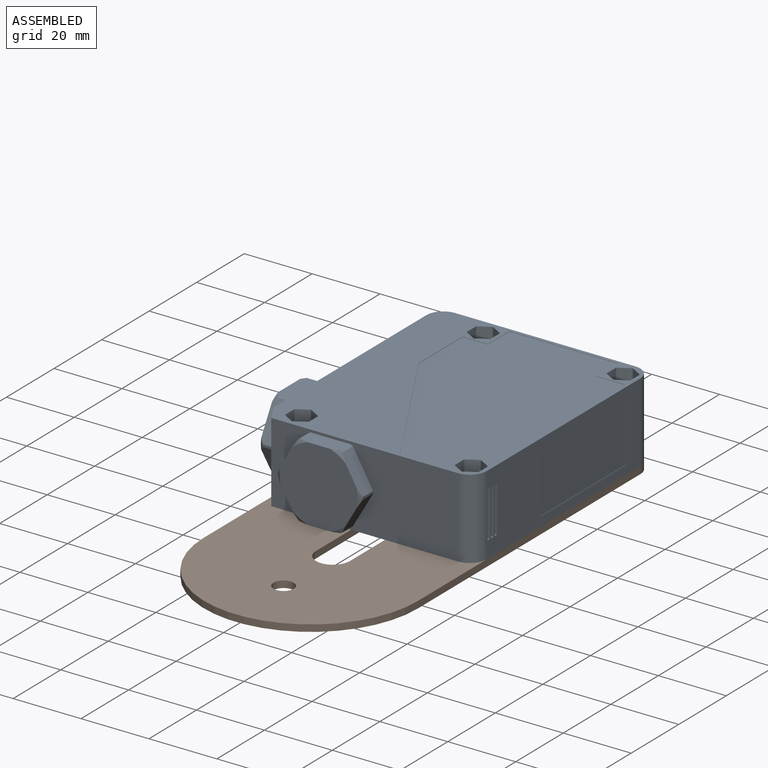
[diagram: assembled view]
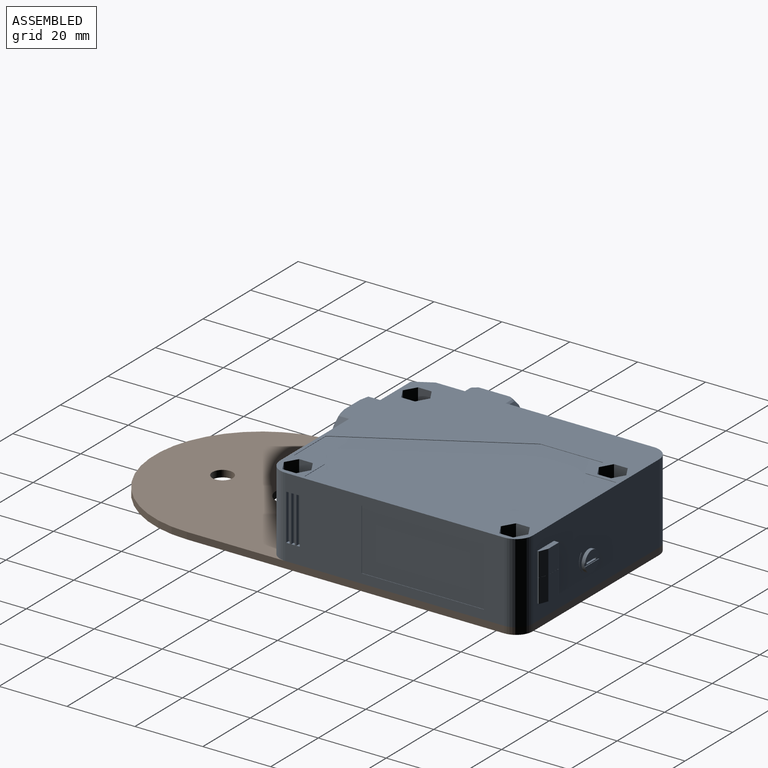
[diagram: assembled view, second angle]
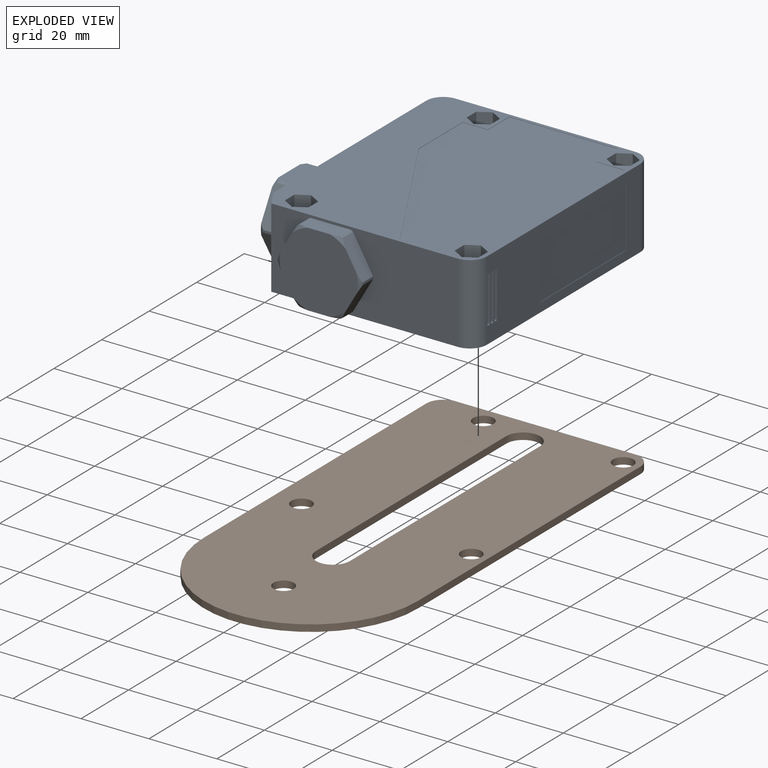
[diagram: exploded view]
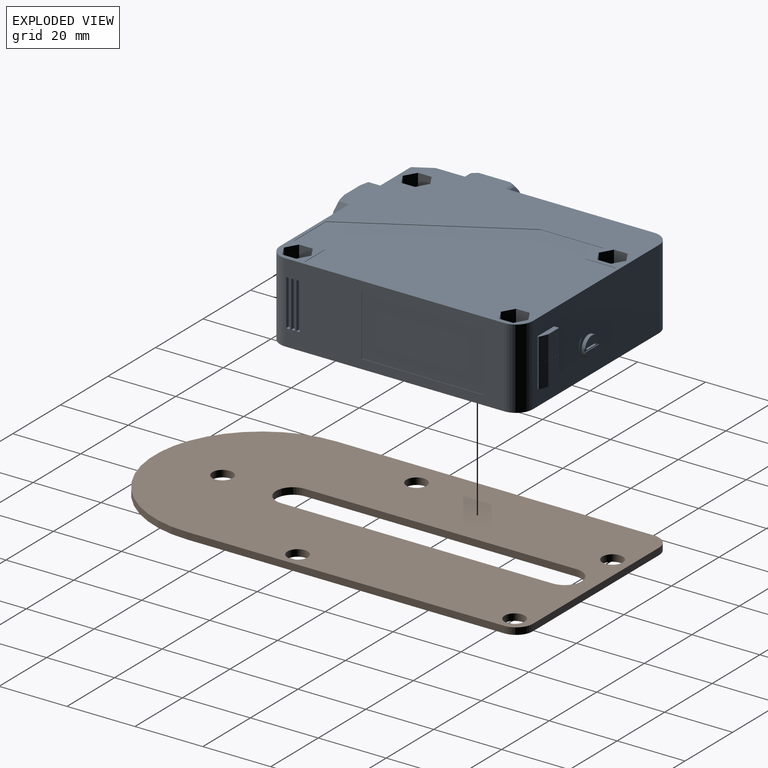
[diagram: exploded view, second angle]
ASSEMBLY  parts=2 mates=2
PART A: 185 faces, bbox 68.2x24.1x81.2 mm
  f0: plane 53x23.5mm, normal (0,0,1), area 1116.3mm2, adj f28,f33,f41,f42,f154,f155,f160,f161
  f1: plane 5.92x2.5mm, normal (0,0,1), area 11.2mm2, adj f171,f174
  f2: cylinder r=12.5mm len=4.42mm, axis (0,0,-1), area 3.2mm2, adj f8,f36,f151,f152
  f3: cylinder r=12.5mm len=4.42mm, axis (0,0,-1), area 3.2mm2, adj f9,f36,f147,f152
  f4: cylinder r=12.5mm len=4.42mm, axis (0,0,-1), area 3.2mm2, adj f10,f36,f150,f151
  f5: cylinder r=12.5mm len=4.42mm, axis (0,0,-1), area 3.2mm2, adj f11,f36,f148,f149
  f6: cylinder r=12.5mm len=4.42mm, axis (0,0,-1), area 3.2mm2, adj f12,f36,f149,f150
  f7: cylinder r=12.5mm len=4.42mm, axis (0,0,-1), area 3.2mm2, adj f13,f36,f147,f148
  f8: cone r=12.5mm half-angle=60deg, axis (0,0,1), area 3.5mm2, adj f2,f14,f151,f152
  f9: cone r=12.5mm half-angle=60deg, axis (0,0,1), area 3.5mm2, adj f3,f14,f147,f152
  f10: cone r=12.5mm half-angle=60deg, axis (0,0,1), area 3.5mm2, adj f4,f14,f150,f151
  f11: cone r=12.5mm half-angle=60deg, axis (0,0,1), area 3.5mm2, adj f5,f14,f148,f149
  f12: cone r=12.5mm half-angle=60deg, axis (0,0,1), area 3.5mm2, adj f6,f14,f149,f150
  f13: cone r=12.5mm half-angle=60deg, axis (0,0,1), area 3.5mm2, adj f7,f14,f147,f148
  f14: plane 23x22mm, normal (0,0,-1), area 402mm2, adj f8,f9,f10,f11,f12,f13,f147,f148
  f15: plane 23.85x22mm, normal (-1,0,0), area 412.4mm2, adj f16,f17,f18,f19,f20,f21,f141,f142
  f16: cone r=11.92mm half-angle=30deg, axis (1,0,0), area 2.2mm2, adj f15,f22,f144,f145
  f17: cone r=11.92mm half-angle=30deg, axis (1,0,0), area 2.2mm2, adj f15,f24,f141,f146
  f18: cone r=11.92mm half-angle=30deg, axis (1,0,0), area 2.2mm2, adj f15,f23,f145,f146
  f19: cone r=11.92mm half-angle=30deg, axis (1,0,0), area 2.2mm2, adj f15,f25,f141,f142
  f20: cone r=11.92mm half-angle=30deg, axis (1,0,0), area 2.2mm2, adj f15,f26,f142,f143
  f21: cone r=11.92mm half-angle=30deg, axis (1,0,0), area 2.2mm2, adj f15,f27,f143,f144
  f22: cylinder r=12.5mm len=4mm, axis (1,0,0), area 2.9mm2, adj f16,f34,f144,f145
  f23: cylinder r=12.5mm len=4mm, axis (1,0,0), area 2.9mm2, adj f18,f34,f145,f146
  f24: cylinder r=12.5mm len=4mm, axis (1,0,0), area 2.9mm2, adj f17,f34,f141,f146
  f25: cylinder r=12.5mm len=4mm, axis (1,0,0), area 2.9mm2, adj f19,f34,f141,f142
  f26: cylinder r=12.5mm len=4mm, axis (1,0,0), area 2.9mm2, adj f20,f34,f142,f143
  f27: cylinder r=12.5mm len=4mm, axis (1,0,0), area 2.9mm2, adj f21,f34,f143,f144
  f28: plane 74.5x63mm, normal (0,1,0), area 1839.4mm2, adj f0,f33,f34,f35,f36,f37,f40,f41
  f29: cylinder r=2.15mm len=16.1mm, axis (0,1,0), area 217.5mm2, adj f88,f116
  f30: cylinder r=2.15mm len=16.1mm, axis (0,1,0), area 217.5mm2, adj f81,f109
  f31: cylinder r=2.15mm len=16.1mm, axis (0,1,0), area 217.5mm2, adj f74,f102
  f32: cylinder r=2.15mm len=16.1mm, axis (0,1,0), area 217.5mm2, adj f67,f95
  f33: cylinder r=5mm len=23.5mm, axis (0,1,0), area 184.6mm2, adj f0,f28,f34,f42
  f34: plane 64.3x23.5mm, normal (-1,0,0), area 1092.4mm2, adj f22,f23,f24,f25,f26,f27,f28,f33
  f35: plane 23.5x5.2mm, normal (-0.87,0,-0.5), area 141mm2, adj f28,f34,f36,f42
  f36: plane 55x23.5mm, normal (0,0,-1), area 873.8mm2, adj f2,f3,f4,f5,f6,f7,f28,f35
  f37: cylinder r=5mm len=23.5mm, axis (0,1,0), area 184.6mm2, adj f28,f36,f40,f42
  f38: plane 13.6x1mm, normal (0,0,1), area 13.6mm2, adj f39,f40,f47,f49
  f39: plane 13.6x1mm, normal (1,0,0), area 13.6mm2, adj f38,f47,f48,f49
  f40: plane 64.5x23.5mm, normal (1,0,0), area 826.9mm2, adj f28,f37,f38,f41,f42,f43,f44,f45
  f41: cylinder r=5mm len=23.5mm, axis (0,1,0), area 184.6mm2, adj f0,f28,f40,f42
  f42: plane 74.5x63mm, normal (0,-1,0), area 1839.4mm2, adj f0,f33,f34,f35,f36,f37,f40,f41
  f43: plane 18x0.1mm, normal (0,0,1), area 1.8mm2, adj f40,f44,f45,f58
  f44: plane 36x0.1mm, normal (0,-1,0), area 3.6mm2, adj f40,f43,f46,f58
  f45: plane 36x0.1mm, normal (0,1,0), area 3.6mm2, adj f40,f43,f46,f58
  f46: plane 18x0.1mm, normal (0,0,-1), area 1.8mm2, adj f40,f44,f45,f58
  f47: plane 1x1mm, normal (0,1,0), area 1mm2, adj f38,f39,f40,f48
  f48: plane 13.6x1mm, normal (0,0,-1), area 13.6mm2, adj f39,f40,f47,f49
  f49: plane 1x1mm, normal (0,-1,0), area 1mm2, adj f38,f39,f40,f48
  f50: plane 13.6x1mm, normal (0,0,-1), area 13.6mm2, adj f40,f51,f56,f60
  f51: plane 1x1mm, normal (0,-1,0), area 1mm2, adj f40,f50,f52,f60
  f52: plane 13.6x1mm, normal (0,0,1), area 13.6mm2, adj f40,f51,f56,f60
  f53: plane 13.6x1mm, normal (0,0,-1), area 13.6mm2, adj f40,f54,f57,f59
  f54: plane 1x1mm, normal (0,-1,0), area 1mm2, adj f40,f53,f55,f59
  f55: plane 13.6x1mm, normal (0,0,1), area 13.6mm2, adj f40,f54,f57,f59
  f56: plane 1x1mm, normal (0,1,0), area 1mm2, adj f40,f50,f52,f60
  f57: plane 1x1mm, normal (0,1,0), area 1mm2, adj f40,f53,f55,f59
  f58: plane 36x18mm, normal (1,0,0), area 648mm2, adj f43,f44,f45,f46
  f59: plane 13.6x1mm, normal (1,0,0), area 13.6mm2, adj f53,f54,f55,f57
  f60: plane 13.6x1mm, normal (1,0,0), area 13.6mm2, adj f50,f51,f52,f56
  f61: plane 3.7x3.5mm, normal (0.5,0,-0.87), area 15mm2, adj f28,f62,f66,f67
  f62: plane 4.04x3.7mm, normal (1,0,0), area 15mm2, adj f28,f61,f63,f67
  f63: plane 3.7x3.5mm, normal (0.5,0,0.87), area 15mm2, adj f28,f62,f64,f67
  f64: plane 3.7x3.5mm, normal (-0.5,0,0.87), area 15mm2, adj f28,f63,f65,f67
  f65: plane 4.04x3.7mm, normal (-1,0,0), area 15mm2, adj f28,f64,f66,f67
  f66: plane 3.7x3.5mm, normal (-0.5,0,-0.87), area 15mm2, adj f28,f61,f65,f67
  f67: plane 8.08x7mm, normal (0,1,0), area 27.9mm2, adj f32,f61,f62,f63,f64,f65,f66
  f68: plane 3.7x3.5mm, normal (0.5,0,-0.87), area 15mm2, adj f28,f69,f73,f74
  f69: plane 4.04x3.7mm, normal (1,0,0), area 15mm2, adj f28,f68,f70,f74
  f70: plane 3.7x3.5mm, normal (0.5,0,0.87), area 15mm2, adj f28,f69,f71,f74
  f71: plane 3.7x3.5mm, normal (-0.5,0,0.87), area 15mm2, adj f28,f70,f72,f74
  f72: plane 4.04x3.7mm, normal (-1,0,0), area 15mm2, adj f28,f71,f73,f74
  f73: plane 3.7x3.5mm, normal (-0.5,0,-0.87), area 15mm2, adj f28,f68,f72,f74
  f74: plane 8.08x7mm, normal (0,1,0), area 27.9mm2, adj f31,f68,f69,f70,f71,f72,f73
  f75: plane 3.7x3.5mm, normal (0.5,0,-0.87), area 15mm2, adj f28,f76,f80,f81
  f76: plane 4.04x3.7mm, normal (1,0,0), area 15mm2, adj f28,f75,f77,f81
  f77: plane 3.7x3.5mm, normal (0.5,0,0.87), area 15mm2, adj f28,f76,f78,f81
  f78: plane 3.7x3.5mm, normal (-0.5,0,0.87), area 15mm2, adj f28,f77,f79,f81
  f79: plane 4.04x3.7mm, normal (-1,0,0), area 15mm2, adj f28,f78,f80,f81
  f80: plane 3.7x3.5mm, normal (-0.5,0,-0.87), area 15mm2, adj f28,f75,f79,f81
  f81: plane 8.08x7mm, normal (0,1,0), area 27.9mm2, adj f30,f75,f76,f77,f78,f79,f80
  f82: plane 3.7x3.5mm, normal (0.5,0,-0.87), area 15mm2, adj f28,f83,f87,f88
  f83: plane 4.04x3.7mm, normal (1,0,0), area 15mm2, adj f28,f82,f84,f88
  f84: plane 3.7x3.5mm, normal (0.5,0,0.87), area 15mm2, adj f28,f83,f85,f88
  f85: plane 3.7x3.5mm, normal (-0.5,0,0.87), area 15mm2, adj f28,f84,f86,f88
  f86: plane 4.04x3.7mm, normal (-1,0,0), area 15mm2, adj f28,f85,f87,f88
  f87: plane 3.7x3.5mm, normal (-0.5,0,-0.87), area 15mm2, adj f28,f82,f86,f88
  f88: plane 8.08x7mm, normal (0,1,0), area 27.9mm2, adj f29,f82,f83,f84,f85,f86,f87
  f89: plane 3.7x3.5mm, normal (0.5,0,-0.87), area 15mm2, adj f42,f90,f94,f95
  f90: plane 4.04x3.7mm, normal (1,0,0), area 15mm2, adj f42,f89,f91,f95
  f91: plane 3.7x3.5mm, normal (0.5,0,0.87), area 15mm2, adj f42,f90,f92,f95
  f92: plane 3.7x3.5mm, normal (-0.5,0,0.87), area 15mm2, adj f42,f91,f93,f95
  f93: plane 4.04x3.7mm, normal (-1,0,0), area 15mm2, adj f42,f92,f94,f95
  f94: plane 3.7x3.5mm, normal (-0.5,0,-0.87), area 15mm2, adj f42,f89,f93,f95
  f95: plane 8.08x7mm, normal (0,-1,0), area 27.9mm2, adj f32,f89,f90,f91,f92,f93,f94
  f96: plane 3.7x3.5mm, normal (0.5,0,-0.87), area 15mm2, adj f42,f97,f101,f102
  f97: plane 4.04x3.7mm, normal (1,0,0), area 15mm2, adj f42,f96,f98,f102
  f98: plane 3.7x3.5mm, normal (0.5,0,0.87), area 15mm2, adj f42,f97,f99,f102
  f99: plane 3.7x3.5mm, normal (-0.5,0,0.87), area 15mm2, adj f42,f98,f100,f102
  f100: plane 4.04x3.7mm, normal (-1,0,0), area 15mm2, adj f42,f99,f101,f102
  f101: plane 3.7x3.5mm, normal (-0.5,0,-0.87), area 15mm2, adj f42,f96,f100,f102
  f102: plane 8.08x7mm, normal (0,-1,0), area 27.9mm2, adj f31,f96,f97,f98,f99,f100,f101
  f103: plane 3.7x3.5mm, normal (0.5,0,-0.87), area 15mm2, adj f42,f104,f108,f109
  f104: plane 4.04x3.7mm, normal (1,0,0), area 15mm2, adj f42,f103,f105,f109
  f105: plane 3.7x3.5mm, normal (0.5,0,0.87), area 15mm2, adj f42,f104,f106,f109
  f106: plane 3.7x3.5mm, normal (-0.5,0,0.87), area 15mm2, adj f42,f105,f107,f109
  f107: plane 4.04x3.7mm, normal (-1,0,0), area 15mm2, adj f42,f106,f108,f109
  f108: plane 3.7x3.5mm, normal (-0.5,0,-0.87), area 15mm2, adj f42,f103,f107,f109
  f109: plane 8.08x7mm, normal (0,-1,0), area 27.9mm2, adj f30,f103,f104,f105,f106,f107,f108
  f110: plane 3.7x3.5mm, normal (0.5,0,-0.87), area 15mm2, adj f42,f111,f115,f116
  f111: plane 4.04x3.7mm, normal (1,0,0), area 15mm2, adj f42,f110,f112,f116
  f112: plane 3.7x3.5mm, normal (0.5,0,0.87), area 15mm2, adj f42,f111,f113,f116
  f113: plane 3.7x3.5mm, normal (-0.5,0,0.87), area 15mm2, adj f42,f112,f114,f116
  f114: plane 4.04x3.7mm, normal (-1,0,0), area 15mm2, adj f42,f113,f115,f116
  f115: plane 3.7x3.5mm, normal (-0.5,0,-0.87), area 15mm2, adj f42,f110,f114,f116
  f116: plane 8.08x7mm, normal (0,-1,0), area 27.9mm2, adj f29,f110,f111,f112,f113,f114,f115
  f117: plane 7.5x0.1mm, normal (0,0,-1), area 0.8mm2, adj f28,f118,f127,f128
  f118: plane 18.5x0.1mm, normal (1,0,0), area 1.9mm2, adj f28,f117,f119,f128
  f119: plane 45x25.98mm, normal (0.87,0,0.5), area 5.2mm2, adj f28,f118,f120,f128
  f120: plane 13.32x0.1mm, normal (0,0,1), area 1.3mm2, adj f28,f119,f121,f128
  f121: plane 9x0.1mm, normal (-1,0,0), area 0.9mm2, adj f28,f120,f122,f128
  f122: plane 8.5x0.1mm, normal (0,0,1), area 0.9mm2, adj f28,f121,f123,f128
  f123: plane 54.5x0.1mm, normal (-1,0,0), area 5.5mm2, adj f28,f122,f124,f128
  f124: plane 8.5x0.1mm, normal (0,0,-1), area 0.9mm2, adj f28,f123,f125,f128
  f125: plane 9x0.1mm, normal (-1,0,0), area 0.9mm2, adj f28,f124,f126,f128
  f126: plane 31.8x0.1mm, normal (0,0,-1), area 3.2mm2, adj f28,f125,f127,f128
  f127: plane 9x0.1mm, normal (1,0,0), area 0.9mm2, adj f28,f117,f126,f128
  f128: plane 72.5x47.8mm, normal (0,1,0), area 2660.4mm2, adj f117,f118,f119,f120,f121,f122,f123,f124
  f129: plane 7.5x0.1mm, normal (0,0,-1), area 0.7mm2, adj f42,f130,f139,f140
  f130: plane 18.5x0.1mm, normal (1,0,0), area 1.8mm2, adj f42,f129,f131,f140
  f131: plane 45x25.98mm, normal (0.87,0,0.5), area 5.2mm2, adj f42,f130,f132,f140
  f132: plane 13.32x0.1mm, normal (0,0,1), area 1.3mm2, adj f42,f131,f133,f140
  f133: plane 9x0.1mm, normal (-1,0,0), area 0.9mm2, adj f42,f132,f134,f140
  f134: plane 8.5x0.1mm, normal (0,0,1), area 0.8mm2, adj f42,f133,f135,f140
  f135: plane 54.5x0.1mm, normal (-1,0,0), area 5.4mm2, adj f42,f134,f136,f140
  f136: plane 8.5x0.1mm, normal (0,0,-1), area 0.8mm2, adj f42,f135,f137,f140
  f137: plane 9x0.1mm, normal (-1,0,0), area 0.9mm2, adj f42,f136,f138,f140
  f138: plane 31.8x0.1mm, normal (0,0,-1), area 3.2mm2, adj f42,f137,f139,f140
  f139: plane 9x0.1mm, normal (1,0,0), area 0.9mm2, adj f42,f129,f138,f140
  f140: plane 72.5x47.8mm, normal (0,-1,0), area 2660.4mm2, adj f129,f130,f131,f132,f133,f134,f135,f136
  f141: plane 11.94x5.07mm, normal (0,1,0), area 58.1mm2, adj f15,f17,f19,f24,f25,f34
  f142: plane 10.35x6.01mm, normal (0,0.5,-0.87), area 58.1mm2, adj f15,f19,f20,f25,f26,f34
  f143: plane 10.35x6.01mm, normal (0,-0.5,-0.87), area 58.1mm2, adj f15,f20,f21,f26,f27,f34
  f144: plane 11.94x5.07mm, normal (0,-1,0), area 58.1mm2, adj f15,f16,f21,f22,f27,f34
  f145: plane 10.35x6.01mm, normal (0,-0.5,0.87), area 58.1mm2, adj f15,f16,f18,f22,f23,f34
  f146: plane 10.35x6.01mm, normal (0,0.5,0.87), area 58.1mm2, adj f15,f17,f18,f23,f24,f34
  f147: plane 10.46x6.12mm, normal (-0.87,-0.5,0), area 58mm2, adj f3,f7,f9,f13,f14,f36
  f148: plane 12.05x5.18mm, normal (0,-1,0), area 58mm2, adj f5,f7,f11,f13,f14,f36
  f149: plane 10.46x6.12mm, normal (0.87,-0.5,0), area 58mm2, adj f5,f6,f11,f12,f14,f36
  f150: plane 10.46x6.12mm, normal (0.87,0.5,0), area 58mm2, adj f4,f6,f10,f12,f14,f36
  f151: plane 12.05x5.18mm, normal (0,1,0), area 58mm2, adj f2,f4,f8,f10,f14,f36
  f152: plane 10.46x6.12mm, normal (-0.87,0.5,0), area 58mm2, adj f2,f3,f8,f9,f14,f36
  f153: cylinder r=0.2mm len=7mm, axis (0,1,0), area 2.2mm2, adj f154,f159,f160,f161
  f154: plane 7x1.3mm, normal (-1,0,0), area 9.1mm2, adj f0,f153,f160,f161
  f155: plane 7x0.36mm, normal (1,0,0), area 2.6mm2, adj f0,f156,f160,f161
  f156: cylinder r=0.2mm len=7mm, axis (0,1,0), area 1.7mm2, adj f155,f157,f160,f161
  f157: plane 7x2.34mm, normal (0.37,0,0.93), area 17.6mm2, adj f156,f158,f160,f161
  f158: cylinder r=0.2mm len=7mm, axis (0,1,0), area 0.5mm2, adj f157,f159,f160,f161
  f159: plane 7x4.26mm, normal (0,0,1), area 29.8mm2, adj f153,f158,f160,f161
  f160: plane 7x1.5mm, normal (0,-1,0), area 9.2mm2, adj f0,f153,f154,f155,f156,f157,f158,f159
  f161: plane 7x1.5mm, normal (0,1,0), area 9.2mm2, adj f0,f153,f154,f155,f156,f157,f158,f159
  f162: cylinder r=0.2mm len=7mm, axis (0,-1,0), area 2.2mm2, adj f163,f168,f169,f170
  f163: plane 7x1.3mm, normal (-1,0,0), area 9.1mm2, adj f0,f162,f169,f170
  f164: plane 7x0.36mm, normal (1,0,0), area 2.6mm2, adj f0,f165,f169,f170
  f165: cylinder r=0.2mm len=7mm, axis (0,-1,0), area 1.7mm2, adj f164,f166,f169,f170
  f166: plane 7x2.34mm, normal (0.37,0,0.93), area 17.6mm2, adj f165,f167,f169,f170
  f167: cylinder r=0.2mm len=7mm, axis (0,-1,0), area 0.5mm2, adj f166,f168,f169,f170
  f168: plane 7x4.26mm, normal (0,0,1), area 29.8mm2, adj f162,f167,f169,f170
  f169: plane 7x1.5mm, normal (0,1,0), area 9.2mm2, adj f0,f162,f163,f164,f165,f166,f167,f168
  f170: plane 7x1.5mm, normal (0,-1,0), area 9.2mm2, adj f0,f162,f163,f164,f165,f166,f167,f168
  f171: cylinder r=3mm len=6mm, axis (0,0,-1), area 18.4mm2, adj f0,f1,f172,f173,f174,f175
  f172: plane 5.92x2.5mm, normal (0,0,1), area 11.2mm2, adj f171,f175
  f173: plane 6x1mm, normal (0,0,1), area 4mm2, adj f171,f174,f175,f177,f178,f179,f180
  f174: plane 5.92x0.2mm, normal (0,-1,0), area 1.2mm2, adj f1,f171,f173
  f175: plane 5.92x0.2mm, normal (0,1,0), area 1.2mm2, adj f171,f172,f173
  f176: plane 4x0.5mm, normal (0,0,1), area 2mm2, adj f177,f178,f179,f180
  f177: plane 4x0.8mm, normal (0,1,0), area 3.2mm2, adj f173,f176,f178,f180
  f178: plane 0.8x0.5mm, normal (-1,0,0), area 0.4mm2, adj f173,f176,f177,f179
  f179: plane 4x0.8mm, normal (0,-1,0), area 3.2mm2, adj f173,f176,f178,f180
  f180: plane 0.8x0.5mm, normal (1,0,0), area 0.4mm2, adj f173,f176,f177,f179
  f181: cylinder r=4mm len=5.66mm, axis (0,0,-1), area 0.6mm2, adj f0,f182,f183,f184
  f182: cylinder r=3.5mm len=4.95mm, axis (0,0,-1), area 0.5mm2, adj f0,f181,f183,f184
  f183: plane 0.71x0.71mm, normal (-0.71,-0.71,0), area 0.1mm2, adj f0,f181,f182,f184
  f184: plane 5.66x1.57mm, normal (0,0,1), area 2.9mm2, adj f181,f182,f183
PART B: 17 faces, bbox 130x63x2 mm
  f0: plane 80x2mm, normal (0,-1,0), area 160mm2, adj f1,f7,f8,f9
  f1: cylinder r=5mm len=10mm, axis (0,0,-1), area 31.4mm2, adj f0,f2,f8,f9
  f2: plane 80x2mm, normal (0,1,0), area 160mm2, adj f1,f7,f8,f9
  f3: plane 53x2mm, normal (-1,0,0), area 106mm2, adj f8,f9,f15,f16
  f4: plane 93.5x2mm, normal (0,-1,0), area 187mm2, adj f5,f8,f9,f15
  f5: cylinder r=31.5mm len=63mm, axis (0,0,-1), area 197.9mm2, adj f4,f6,f8,f9
  f6: plane 93.5x2mm, normal (0,1,0), area 187mm2, adj f5,f8,f9,f16
  f7: cylinder r=5mm len=10mm, axis (0,0,-1), area 31.4mm2, adj f0,f2,f8,f9
  f8: plane 130x63mm, normal (0,0,1), area 6733.5mm2, adj f0,f1,f2,f3,f4,f5,f6,f7
  f9: plane 130x63mm, normal (0,0,-1), area 6733.5mm2, adj f0,f1,f2,f3,f4,f5,f6,f7
  f10: cylinder r=3mm len=6mm, axis (0,0,-1), area 37.7mm2, adj f8,f9
  f11: cylinder r=3mm len=6mm, axis (0,0,-1), area 37.7mm2, adj f8,f9
  f12: cylinder r=3mm len=6mm, axis (0,0,-1), area 37.7mm2, adj f8,f9
  f13: cylinder r=3mm len=6mm, axis (0,0,-1), area 37.7mm2, adj f8,f9
  f14: cylinder r=3mm len=6mm, axis (0,0,-1), area 37.7mm2, adj f8,f9
  f15: cylinder r=5mm len=5mm, axis (0,0,-1), area 15.7mm2, adj f3,f4,f8,f9
  f16: cylinder r=5mm len=5mm, axis (0,0,1), area 15.7mm2, adj f3,f6,f8,f9
PLACE A rot(axis=(-1,0,0),90deg) t=(37.7,10.3,-11.75)mm fixed
PLACE B rot(axis=(0,0,-1),90deg) t=(11,-19,-13.75)mm
MATE revolute B.f12 <-> A.f32  axis (0,0,1) through (37.7,10.3,-11.75)mm
MATE revolute A.f30 <-> B.f11  axis (0,0,-1) through (-3.5,74.2,-8.05)mm
